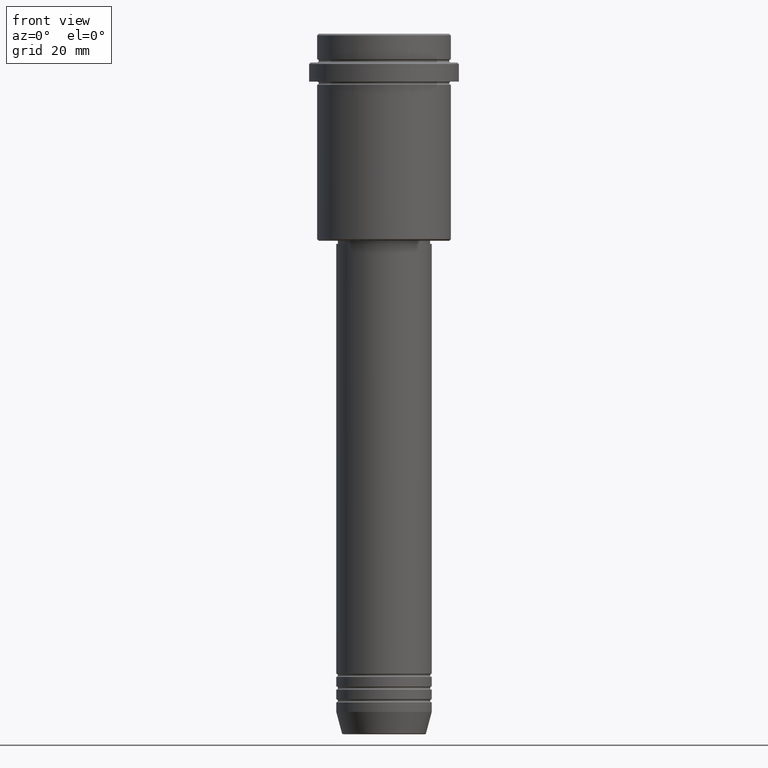
[diagram: clean part render]
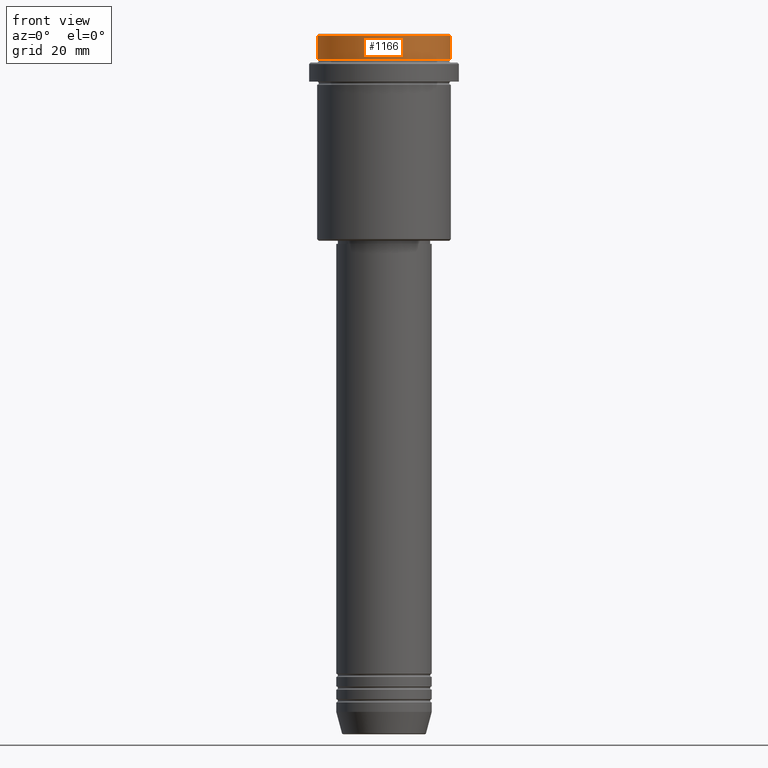
[diagram: same view with one face highlighted and labeled with its STEP entity id]
A machine part, front view. The second image highlights one B-rep face of the part: STEP entity #1166.
In plain terms, the highlighted cylindrical surface (partial cylindrical patch) has radius 21 mm, axis along (-0, -0, 1).
Its self-contained STEP definition (entity closure, byte-faithful):
#8 = EDGE_CURVE ( 'NONE', #1143, #326, #354, .T. ) ;
#60 = VERTEX_POINT ( 'NONE', #1002 ) ;
#94 = FACE_OUTER_BOUND ( 'NONE', #601, .T. ) ;
#142 = DIRECTION ( 'NONE',  ( 1.000000000000000000, 0.000000000000000000, 0.000000000000000000 ) ) ;
#160 = EDGE_CURVE ( 'NONE', #595, #326, #1176, .T. ) ;
#207 = CARTESIAN_POINT ( 'NONE',  ( -20.99999999999999645, 2.571758278209441267E-15, 0.000000000000000000 ) ) ;
#276 = DIRECTION ( 'NONE',  ( -0.000000000000000000, -0.000000000000000000, 1.000000000000000000 ) ) ;
#283 = CARTESIAN_POINT ( 'NONE',  ( 0.000000000000000000, 0.000000000000000000, -7.999999999999998224 ) ) ;
#326 = VERTEX_POINT ( 'NONE', #1026 ) ;
#354 = CIRCLE ( 'NONE', #724, 20.99999999999999645 ) ;
#366 = EDGE_CURVE ( 'NONE', #60, #1143, #479, .T. ) ;
#419 = DIRECTION ( 'NONE',  ( -0.000000000000000000, -0.000000000000000000, 1.000000000000000000 ) ) ;
#479 = LINE ( 'NONE', #1414, #861 ) ;
#517 = ORIENTED_EDGE ( 'NONE', *, *, #8, .T. ) ;
#530 = DIRECTION ( 'NONE',  ( 1.000000000000000000, 0.000000000000000000, 0.000000000000000000 ) ) ;
#595 = VERTEX_POINT ( 'NONE', #1155 ) ;
#601 = EDGE_LOOP ( 'NONE', ( #1167, #711, #1182, #517 ) ) ;
#711 = ORIENTED_EDGE ( 'NONE', *, *, #1099, .T. ) ;
#724 = AXIS2_PLACEMENT_3D ( 'NONE', #1238, #919, #142 ) ;
#730 = CARTESIAN_POINT ( 'NONE',  ( 20.99999999999999645, 0.000000000000000000, -0.5000000000000073275 ) ) ;
#738 = CYLINDRICAL_SURFACE ( 'NONE', #1071, 20.99999999999999645 ) ;
#861 = VECTOR ( 'NONE', #1239, 1000.000000000000000 ) ;
#919 = DIRECTION ( 'NONE',  ( 0.000000000000000000, 0.000000000000000000, -1.000000000000000000 ) ) ;
#933 = CIRCLE ( 'NONE', #1358, 20.99999999999999645 ) ;
#948 = CARTESIAN_POINT ( 'NONE',  ( 0.000000000000000000, 0.000000000000000000, 0.000000000000000000 ) ) ;
#1002 = CARTESIAN_POINT ( 'NONE',  ( 20.99999999999999645, 0.000000000000000000, -7.999999999999998224 ) ) ;
#1026 = CARTESIAN_POINT ( 'NONE',  ( -20.99999999999999645, 2.571758278209441267E-15, -0.5000000000000073275 ) ) ;
#1027 = DIRECTION ( 'NONE',  ( -0.000000000000000000, -0.000000000000000000, 1.000000000000000000 ) ) ;
#1071 = AXIS2_PLACEMENT_3D ( 'NONE', #948, #419, #530 ) ;
#1084 = VECTOR ( 'NONE', #1027, 1000.000000000000000 ) ;
#1099 = EDGE_CURVE ( 'NONE', #595, #60, #933, .T. ) ;
#1143 = VERTEX_POINT ( 'NONE', #730 ) ;
#1155 = CARTESIAN_POINT ( 'NONE',  ( -20.99999999999999645, 2.571758278209441267E-15, -7.999999999999998224 ) ) ;
#1166 = ADVANCED_FACE ( 'NONE', ( #94 ), #738, .T. ) ;
#1167 = ORIENTED_EDGE ( 'NONE', *, *, #160, .F. ) ;
#1176 = LINE ( 'NONE', #207, #1084 ) ;
#1182 = ORIENTED_EDGE ( 'NONE', *, *, #366, .T. ) ;
#1238 = CARTESIAN_POINT ( 'NONE',  ( 0.000000000000000000, 0.000000000000000000, -0.5000000000000073275 ) ) ;
#1239 = DIRECTION ( 'NONE',  ( -0.000000000000000000, -0.000000000000000000, 1.000000000000000000 ) ) ;
#1358 = AXIS2_PLACEMENT_3D ( 'NONE', #283, #276, #1393 ) ;
#1393 = DIRECTION ( 'NONE',  ( 1.000000000000000000, 0.000000000000000000, 0.000000000000000000 ) ) ;
#1414 = CARTESIAN_POINT ( 'NONE',  ( 20.99999999999999645, 0.000000000000000000, 0.000000000000000000 ) ) ;